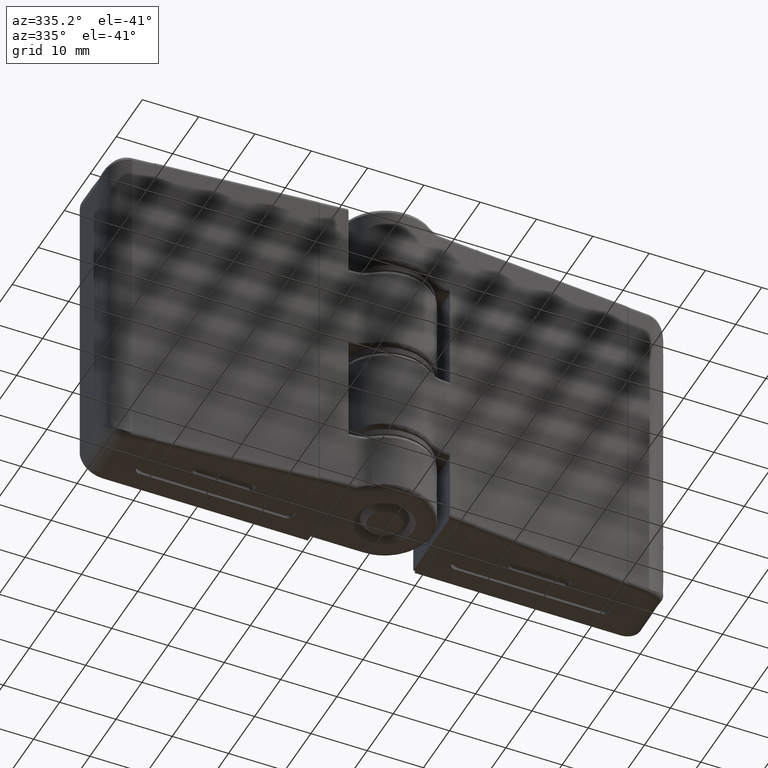
[diagram: clean part render]
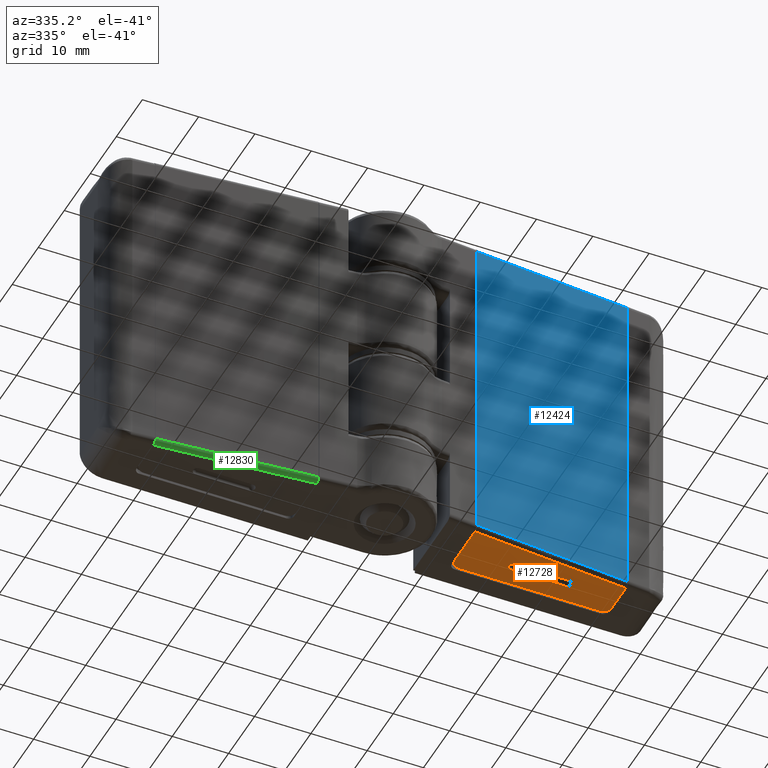
[diagram: same view with three faces highlighted in distinct colors, each labeled with its STEP entity id]
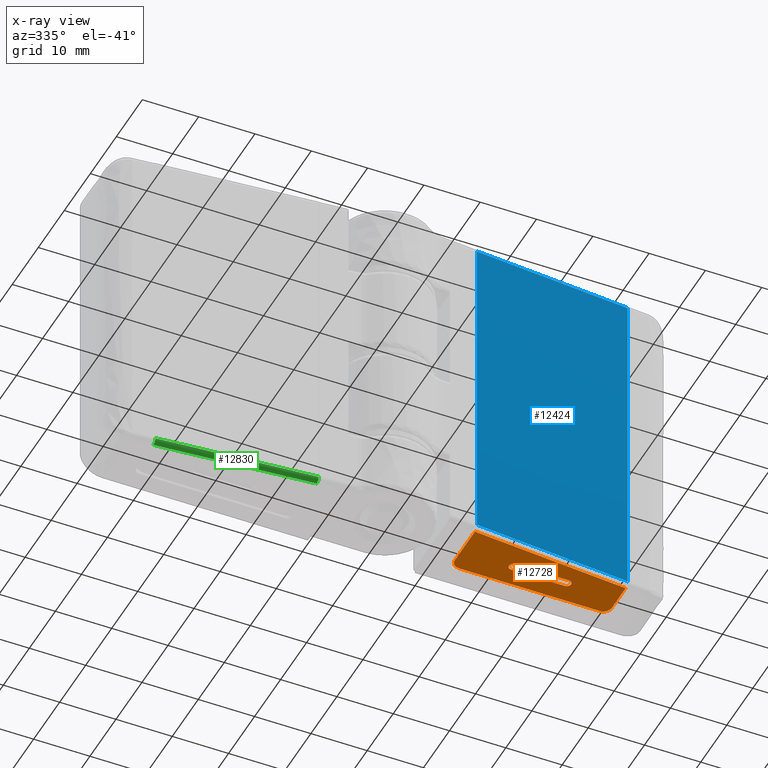
[diagram: x-ray of the same camera — body ghosted, the three highlighted faces saturated]
A machine part, auxiliary view with three faces highlighted in distinct colors.
The next image is the same camera in x-ray (body ghosted, the three faces saturated) — at least one of them is partly hidden behind the body in this view.
Their STEP definitions:

[orange] entity #12728 — the highlighted face is a freeform B-spline surface patch.
#11626=CARTESIAN_POINT('',(14.050000000000001,-4.296944128323120,60.0));
#11627=VERTEX_POINT('',#11626);
#11643=CARTESIAN_POINT('',(41.950000000000003,-1.856009758832115,60.0));
#11644=VERTEX_POINT('',#11643);
#11645=CARTESIAN_POINT('',(41.950000000000003,-1.856009758832115,60.0));
#11646=CARTESIAN_POINT('',(14.050000000000001,-4.296944128323120,60.0));
#11647=QUASI_UNIFORM_CURVE('',1,(#11645,#11646),.UNSPECIFIED.,.F.,.U.);
#11648=EDGE_CURVE('',#11644,#11627,#11647,.T.);
#11904=CARTESIAN_POINT('',(32.799999999999997,1.750000000000000,60.0));
#11905=VERTEX_POINT('',#11904);
#11906=CARTESIAN_POINT('',(32.799999999999997,0.250000000000000,60.0));
#11907=VERTEX_POINT('',#11906);
#11923=CARTESIAN_POINT('',(32.799999999999997,0.250000000000000,60.0));
#11924=CARTESIAN_POINT('',(33.549999999999997,0.250000000000000,60.0));
#11925=CARTESIAN_POINT('',(33.549999999999997,1.0,60.0));
#11926=CARTESIAN_POINT('',(33.549999999999997,1.750000000000000,60.0));
#11927=CARTESIAN_POINT('',(32.799999999999997,1.750000000000000,60.0));
#11935=(BOUNDED_CURVE()B_SPLINE_CURVE(2,(#11923,#11924,#11925,#11926,#11927),.UNSPECIFIED.,.F.,.U.)B_SPLINE_CURVE_WITH_KNOTS((3,2,3),(0.0,0.500000000000000,1.0),.UNSPECIFIED.)CURVE()GEOMETRIC_REPRESENTATION_ITEM()RATIONAL_B_SPLINE_CURVE((1.0,0.707106781186548,1.0,0.707106781186548,1.0))REPRESENTATION_ITEM(''));
#11936=EDGE_CURVE('',#11907,#11905,#11935,.T.);
#11973=CARTESIAN_POINT('',(23.300727136150751,1.750000000000000,60.0));
#11974=VERTEX_POINT('',#11973);
#11975=CARTESIAN_POINT('',(23.300727136150751,0.250000000000000,60.0));
#11976=VERTEX_POINT('',#11975);
#11977=CARTESIAN_POINT('',(23.300727136150751,1.750000000000000,60.0));
#11978=CARTESIAN_POINT('',(22.550727136150751,1.750000000000000,60.0));
#11979=CARTESIAN_POINT('',(22.550727136150751,1.0,60.0));
#11980=CARTESIAN_POINT('',(22.550727136150751,0.250000000000000,60.0));
#11981=CARTESIAN_POINT('',(23.300727136150751,0.250000000000000,60.0));
#11989=(BOUNDED_CURVE()B_SPLINE_CURVE(2,(#11977,#11978,#11979,#11980,#11981),.UNSPECIFIED.,.F.,.U.)B_SPLINE_CURVE_WITH_KNOTS((3,2,3),(0.0,0.500000000000000,1.0),.UNSPECIFIED.)CURVE()GEOMETRIC_REPRESENTATION_ITEM()RATIONAL_B_SPLINE_CURVE((1.0,0.707106781186548,1.0,0.707106781186548,1.0))REPRESENTATION_ITEM(''));
#11990=EDGE_CURVE('',#11974,#11976,#11989,.T.);
#12028=CARTESIAN_POINT('',(23.300727136150751,1.750000000000000,60.0));
#12029=CARTESIAN_POINT('',(32.799999999999997,1.750000000000000,60.0));
#12030=QUASI_UNIFORM_CURVE('',1,(#12028,#12029),.UNSPECIFIED.,.F.,.U.);
#12031=EDGE_CURVE('',#11974,#11905,#12030,.T.);
#12034=CARTESIAN_POINT('',(23.300727136150751,0.250000000000000,60.0));
#12035=CARTESIAN_POINT('',(32.799999999999997,0.250000000000000,60.0));
#12036=QUASI_UNIFORM_CURVE('',1,(#12034,#12035),.UNSPECIFIED.,.F.,.U.);
#12037=EDGE_CURVE('',#11976,#11907,#12036,.T.);
#12538=CARTESIAN_POINT('',(41.950000000000003,3.500000000000000,60.0));
#12539=VERTEX_POINT('',#12538);
#12540=CARTESIAN_POINT('',(41.950000000000003,-1.856009758832115,60.0));
#12541=CARTESIAN_POINT('',(41.950000000000003,3.500000000000000,60.0));
#12542=QUASI_UNIFORM_CURVE('',1,(#12540,#12541),.UNSPECIFIED.,.F.,.U.);
#12543=EDGE_CURVE('',#11644,#12539,#12542,.T.);
#12568=CARTESIAN_POINT('',(14.050000000000001,3.500000000000000,60.0));
#12569=VERTEX_POINT('',#12568);
#12570=CARTESIAN_POINT('',(14.050000000000001,3.500000000000000,60.0));
#12571=CARTESIAN_POINT('',(14.050000000000001,-4.296944128323120,60.0));
#12572=QUASI_UNIFORM_CURVE('',1,(#12570,#12571),.UNSPECIFIED.,.F.,.U.);
#12573=EDGE_CURVE('',#12569,#11627,#12572,.T.);
#12611=CARTESIAN_POINT('',(15.550000000000001,5.0,60.0));
#12612=VERTEX_POINT('',#12611);
#12618=CARTESIAN_POINT('',(15.550000000000001,5.0,60.0));
#12619=CARTESIAN_POINT('',(14.050000000000001,5.000000000000001,60.0));
#12620=CARTESIAN_POINT('',(14.050000000000001,3.500000000000000,60.0));
#12628=(BOUNDED_CURVE()B_SPLINE_CURVE(2,(#12618,#12619,#12620),.UNSPECIFIED.,.F.,.U.)CURVE()GEOMETRIC_REPRESENTATION_ITEM()QUASI_UNIFORM_CURVE()RATIONAL_B_SPLINE_CURVE((1.0,0.707106781186548,1.0))REPRESENTATION_ITEM(''));
#12629=EDGE_CURVE('',#12612,#12569,#12628,.T.);
#12641=CARTESIAN_POINT('',(40.450000000000003,5.0,60.0));
#12642=VERTEX_POINT('',#12641);
#12648=CARTESIAN_POINT('',(40.450000000000003,5.0,60.0));
#12649=CARTESIAN_POINT('',(15.550000000000001,5.0,60.0));
#12650=QUASI_UNIFORM_CURVE('',1,(#12648,#12649),.UNSPECIFIED.,.F.,.U.);
#12651=EDGE_CURVE('',#12642,#12612,#12650,.T.);
#12673=CARTESIAN_POINT('',(41.950000000000003,3.500000000000000,60.0));
#12674=CARTESIAN_POINT('',(41.949999999999996,5.000000000000001,60.0));
#12675=CARTESIAN_POINT('',(40.450000000000003,5.0,60.0));
#12683=(BOUNDED_CURVE()B_SPLINE_CURVE(2,(#12673,#12674,#12675),.UNSPECIFIED.,.F.,.U.)CURVE()GEOMETRIC_REPRESENTATION_ITEM()QUASI_UNIFORM_CURVE()RATIONAL_B_SPLINE_CURVE((1.0,0.707106781186548,1.0))REPRESENTATION_ITEM(''));
#12684=EDGE_CURVE('',#12539,#12642,#12683,.T.);
#12709=CARTESIAN_POINT('',(43.343605731640103,-4.761326469513579,60.0));
#12710=CARTESIAN_POINT('',(12.656394268359900,-4.761326469513579,60.0));
#12711=CARTESIAN_POINT('',(43.343605731640103,5.464382590553932,60.0));
#12712=CARTESIAN_POINT('',(12.656394268359900,5.464382590553932,60.0));
#12713=B_SPLINE_SURFACE_WITH_KNOTS('',1,1,((#12709,#12711),(#12710,#12712)),.UNSPECIFIED.,.F.,.F.,.U.,(2,2),(2,2),(0.0,30.687211463280200),(0.0,10.225709060067510),.UNSPECIFIED.);
#12714=ORIENTED_EDGE('',*,*,#12543,.F.);
#12715=ORIENTED_EDGE('',*,*,#11648,.T.);
#12716=ORIENTED_EDGE('',*,*,#12573,.F.);
#12717=ORIENTED_EDGE('',*,*,#12629,.F.);
#12718=ORIENTED_EDGE('',*,*,#12651,.F.);
#12719=ORIENTED_EDGE('',*,*,#12684,.F.);
#12720=EDGE_LOOP('',(#12714,#12715,#12716,#12717,#12718,#12719));
#12721=FACE_OUTER_BOUND('',#12720,.T.);
#12722=ORIENTED_EDGE('',*,*,#12031,.F.);
#12723=ORIENTED_EDGE('',*,*,#11990,.T.);
#12724=ORIENTED_EDGE('',*,*,#12037,.T.);
#12725=ORIENTED_EDGE('',*,*,#11936,.T.);
#12726=EDGE_LOOP('',(#12722,#12723,#12724,#12725));
#12727=FACE_BOUND('',#12726,.T.);
#12728=ADVANCED_FACE('',(#12721,#12727),#12713,.T.);

[blue] entity #12424 — the highlighted face is a freeform B-spline surface patch.
#11628=CARTESIAN_POINT('',(14.050000000000001,-5.100000000000001,60.799999999999997));
#11629=VERTEX_POINT('',#11628);
#11650=CARTESIAN_POINT('',(41.950000000000003,-2.659065630508990,60.799999999999997));
#11651=VERTEX_POINT('',#11650);
#11665=CARTESIAN_POINT('',(14.050000000000001,-5.100000000000001,60.799999999999997));
#11666=CARTESIAN_POINT('',(41.950000000000003,-2.659065630508990,60.799999999999997));
#11667=QUASI_UNIFORM_CURVE('',1,(#11665,#11666),.UNSPECIFIED.,.F.,.U.);
#11668=EDGE_CURVE('',#11629,#11651,#11667,.T.);
#11687=CARTESIAN_POINT('',(14.050000000000001,-5.100000000000001,119.200000000000000));
#11688=VERTEX_POINT('',#11687);
#11704=CARTESIAN_POINT('',(41.950000000000003,-2.659065630508990,119.200000000000000));
#11705=VERTEX_POINT('',#11704);
#11706=CARTESIAN_POINT('',(41.950000000000003,-2.659065630508990,119.200000000000000));
#11707=CARTESIAN_POINT('',(14.050000000000001,-5.100000000000001,119.200000000000000));
#11708=QUASI_UNIFORM_CURVE('',1,(#11706,#11707),.UNSPECIFIED.,.F.,.U.);
#11709=EDGE_CURVE('',#11705,#11688,#11708,.T.);
#12405=CARTESIAN_POINT('',(43.343605731640110,-2.537140894742688,122.117076597505000));
#12406=CARTESIAN_POINT('',(12.656394268359900,-5.221924735766307,122.117076597505000));
#12407=CARTESIAN_POINT('',(43.343605731640110,-2.537140894742688,57.882918703264821));
#12408=CARTESIAN_POINT('',(12.656394268359900,-5.221924735766307,57.882918703264821));
#12409=B_SPLINE_SURFACE_WITH_KNOTS('',1,1,((#12405,#12407),(#12406,#12408)),.UNSPECIFIED.,.F.,.F.,.U.,(2,2),(2,2),(0.0,30.804431688721309),(0.0,64.234157894240170),.UNSPECIFIED.);
#12410=CARTESIAN_POINT('',(14.050000000000001,-5.100000000000001,60.799999999999997));
#12411=CARTESIAN_POINT('',(14.050000000000001,-5.100000000000001,119.200000000000000));
#12412=QUASI_UNIFORM_CURVE('',1,(#12410,#12411),.UNSPECIFIED.,.F.,.U.);
#12413=EDGE_CURVE('',#11629,#11688,#12412,.T.);
#12414=ORIENTED_EDGE('',*,*,#12413,.F.);
#12415=ORIENTED_EDGE('',*,*,#11668,.T.);
#12416=CARTESIAN_POINT('',(41.950000000000003,-2.659065630508990,60.799999999999997));
#12417=CARTESIAN_POINT('',(41.950000000000003,-2.659065630508990,119.200000000000000));
#12418=QUASI_UNIFORM_CURVE('',1,(#12416,#12417),.UNSPECIFIED.,.F.,.U.);
#12419=EDGE_CURVE('',#11651,#11705,#12418,.T.);
#12420=ORIENTED_EDGE('',*,*,#12419,.T.);
#12421=ORIENTED_EDGE('',*,*,#11709,.T.);
#12422=EDGE_LOOP('',(#12414,#12415,#12420,#12421));
#12423=FACE_OUTER_BOUND('',#12422,.T.);
#12424=ADVANCED_FACE('',(#12423),#12409,.T.);

[green] entity #12830 — the highlighted face is a freeform B-spline surface patch.
#12770=CARTESIAN_POINT('',(-42.647417937734907,-1.773972027073451,0.000274140019554));
#12771=CARTESIAN_POINT('',(-13.261726016384671,-4.344887632166567,0.000274140019554));
#12772=CARTESIAN_POINT('',(-42.723482925938839,-2.643398586597081,-0.022579560956788));
#12773=CARTESIAN_POINT('',(-13.337791004588601,-5.214314191690198,-0.022579560956788));
#12774=CARTESIAN_POINT('',(-42.718837677688683,-2.590303170432312,0.848838831627889));
#12775=CARTESIAN_POINT('',(-13.333145756338460,-5.161218775525429,0.848838831627889));
#12783=(BOUNDED_SURFACE()B_SPLINE_SURFACE(1,2,((#12770,#12772,#12774),(#12771,#12773,#12775)),.UNSPECIFIED.,.F.,.F.,.U.)B_SPLINE_SURFACE_WITH_KNOTS((2,2),(3,3),(0.0,29.497940550909991),(0.0,1.0),.UNSPECIFIED.)GEOMETRIC_REPRESENTATION_ITEM()RATIONAL_B_SPLINE_SURFACE(((1.0,0.675590207615660,1.0),(1.0,0.675590207615660,1.0)))REPRESENTATION_ITEM('')SURFACE());
#12784=CARTESIAN_POINT('',(-14.050000000000001,-5.100000000000001,0.800000000000023));
#12785=VERTEX_POINT('',#12784);
#12786=CARTESIAN_POINT('',(-14.050000000000001,-4.296944128323120,0.0));
#12787=VERTEX_POINT('',#12786);
#12788=CARTESIAN_POINT('',(-14.050000000000001,-5.099999999999994,0.800000000000000));
#12789=CARTESIAN_POINT('',(-14.050000000000002,-5.099999999999993,0.0));
#12790=CARTESIAN_POINT('',(-14.050000000000001,-4.296944128323120,0.0));
#12798=(BOUNDED_CURVE()B_SPLINE_CURVE(2,(#12788,#12789,#12790),.UNSPECIFIED.,.F.,.U.)CURVE()GEOMETRIC_REPRESENTATION_ITEM()QUASI_UNIFORM_CURVE()RATIONAL_B_SPLINE_CURVE((1.0,0.707106781186548,1.0))REPRESENTATION_ITEM(''));
#12799=EDGE_CURVE('',#12785,#12787,#12798,.T.);
#12800=ORIENTED_EDGE('',*,*,#12799,.F.);
#12801=CARTESIAN_POINT('',(-41.950000000000003,-2.659065630508990,0.800000000000023));
#12802=VERTEX_POINT('',#12801);
#12803=CARTESIAN_POINT('',(-41.950000000000003,-2.659065630508990,0.800000000000023));
#12804=CARTESIAN_POINT('',(-14.050000000000001,-5.100000000000001,0.800000000000023));
#12805=QUASI_UNIFORM_CURVE('',1,(#12803,#12804),.UNSPECIFIED.,.F.,.U.);
#12806=EDGE_CURVE('',#12802,#12785,#12805,.T.);
#12807=ORIENTED_EDGE('',*,*,#12806,.F.);
#12808=CARTESIAN_POINT('',(-41.950000000000003,-1.856009758832115,0.0));
#12809=VERTEX_POINT('',#12808);
#12810=CARTESIAN_POINT('',(-41.950000000000003,-1.856009758832115,0.0));
#12811=CARTESIAN_POINT('',(-41.950000000000010,-2.659065630508989,0.0));
#12812=CARTESIAN_POINT('',(-41.950000000000003,-2.659065630508989,0.800000000000000));
#12820=(BOUNDED_CURVE()B_SPLINE_CURVE(2,(#12810,#12811,#12812),.UNSPECIFIED.,.F.,.U.)CURVE()GEOMETRIC_REPRESENTATION_ITEM()QUASI_UNIFORM_CURVE()RATIONAL_B_SPLINE_CURVE((1.0,0.707106781186547,1.0))REPRESENTATION_ITEM(''));
#12821=EDGE_CURVE('',#12809,#12802,#12820,.T.);
#12822=ORIENTED_EDGE('',*,*,#12821,.F.);
#12823=CARTESIAN_POINT('',(-14.050000000000001,-4.296944128323120,0.0));
#12824=CARTESIAN_POINT('',(-41.950000000000003,-1.856009758832115,0.0));
#12825=QUASI_UNIFORM_CURVE('',1,(#12823,#12824),.UNSPECIFIED.,.F.,.U.);
#12826=EDGE_CURVE('',#12787,#12809,#12825,.T.);
#12827=ORIENTED_EDGE('',*,*,#12826,.F.);
#12828=EDGE_LOOP('',(#12800,#12807,#12822,#12827));
#12829=FACE_OUTER_BOUND('',#12828,.T.);
#12830=ADVANCED_FACE('',(#12829),#12783,.T.);